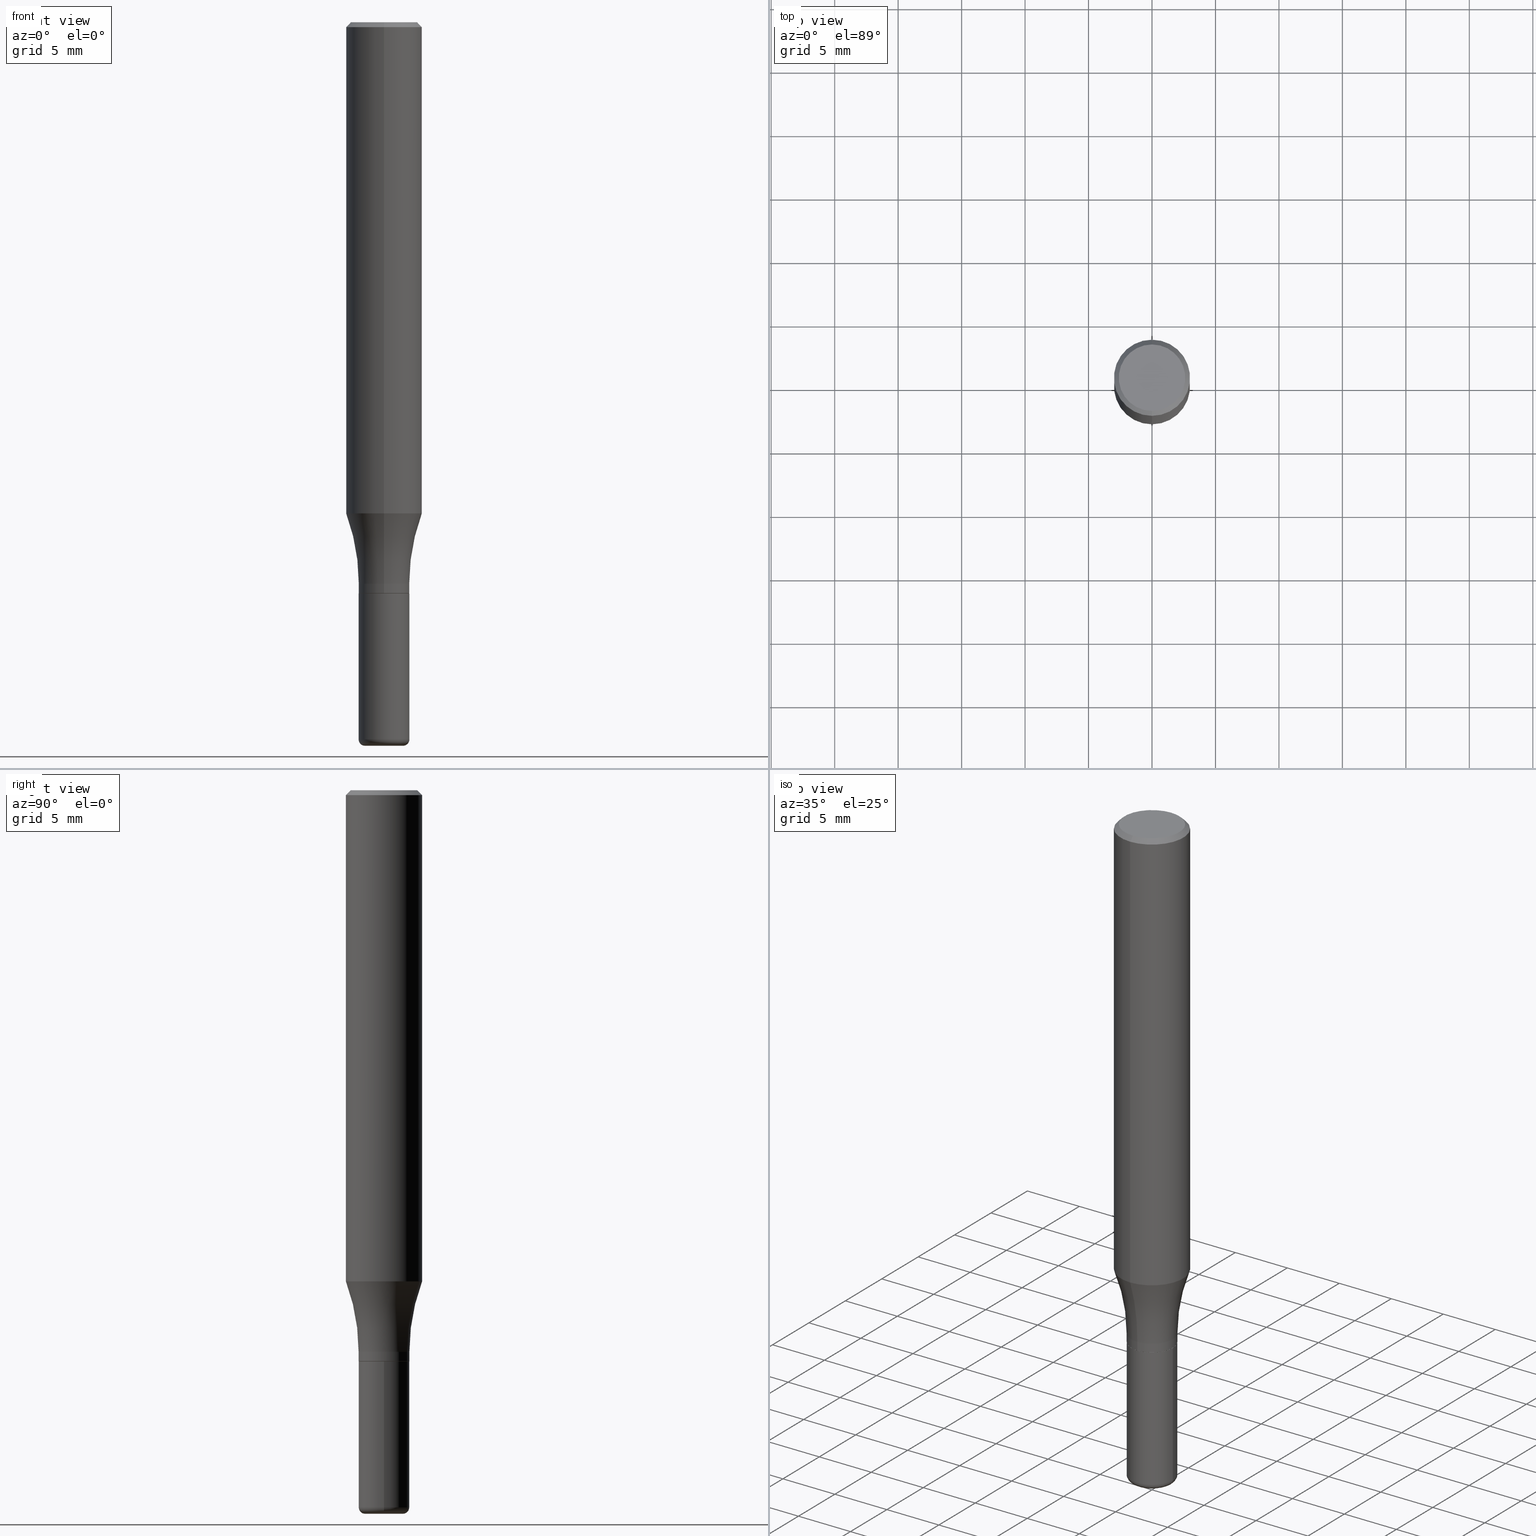
[diagram: canonical four-view strip — front | top / right | iso, engineering-drawing reading convention]
A machine part, canonical four-view strip (front | top / right | iso — engineering-drawing reading convention). The complete STEP part file that produces these views, byte-faithful:
ISO-10303-21;
HEADER;
FILE_DESCRIPTION (( 'STEP AP203' ),
    '1' );
FILE_NAME ('43471.STEP',
    '2024-02-29T19:33:10',
    ( '' ),
    ( '' ),
    'SwSTEP 2.0',
    'SolidWorks 2023',
    '' );
FILE_SCHEMA (( 'CONFIG_CONTROL_DESIGN' ));
ENDSEC;

DATA;
#1 = PLANE ( 'NONE',  #255 ) ;
#2 = DIRECTION ( 'NONE',  ( -6.982962677686265133E-15, -1.000000000000000000, 3.491179544618863180E-15 ) ) ;
#3 = ORIENTED_EDGE ( 'NONE', *, *, #267, .T. ) ;
#4 = DIRECTION ( 'NONE',  ( 6.982962677686265922E-15, 1.000000000000000000, -3.492184190823146687E-15 ) ) ;
#5 = ORIENTED_EDGE ( 'NONE', *, *, #274, .F. ) ;
#6 = CARTESIAN_POINT ( 'NONE',  ( -0.05905000000000000526, -7.311278236371589572E-15, -2.244100000000000428 ) ) ;
#7 = ORIENTED_EDGE ( 'NONE', *, *, #193, .F. ) ;
#8 = VECTOR ( 'NONE', #304, 39.37007874015748854 ) ;
#9 = PLANE ( 'NONE',  #67 ) ;
#10 = DIRECTION ( 'NONE',  ( -2.444978007270708003E-29, 3.492184190823146687E-15, 1.000000000000000000 ) ) ;
#11 = DIRECTION ( 'NONE',  ( 1.000000000000000000, 0.000000000000000000, 0.000000000000000000 ) ) ;
#12 = ADVANCED_BREP_SHAPE_REPRESENTATION ( '43471', ( #367, #372, #425 ), #356 ) ;
#13 = UNCERTAINTY_MEASURE_WITH_UNIT (LENGTH_MEASURE( 1.000000000000000082E-05 ), #403, 'distance_accuracy_value', 'NONE');
#14 = FACE_OUTER_BOUND ( 'NONE', #261, .T. ) ;
#15 = VECTOR ( 'NONE', #333, 39.37007874015748143 ) ;
#16 = VERTEX_POINT ( 'NONE', #295 ) ;
#17 = AXIS2_PLACEMENT_3D ( 'NONE', #36, #79, #227 ) ;
#18 = ADVANCED_FACE ( 'NONE', ( #129 ), #39, .F. ) ;
#19 = CARTESIAN_POINT ( 'NONE',  ( 5.595524044111222877E-16, 0.07874999999999389433, -1.771200000000000774 ) ) ;
#20 = ORIENTED_EDGE ( 'NONE', *, *, #416, .T. ) ;
#21 = VERTEX_POINT ( 'NONE', #19 ) ;
#22 = APPROVAL_DATE_TIME ( #148, #140 ) ;
#23 = CONICAL_SURFACE ( 'NONE', #332, 0.07825000000000008338, 0.7853981633978239785 ) ;
#24 = ORIENTED_EDGE ( 'NONE', *, *, #260, .F. ) ;
#25 = SECURITY_CLASSIFICATION_LEVEL ( 'unclassified' ) ;
#26 = EDGE_CURVE ( 'NONE', #21, #309, #68, .T. ) ;
#27 = ORIENTED_EDGE ( 'NONE', *, *, #154, .T. ) ;
#28 = FACE_OUTER_BOUND ( 'NONE', #219, .T. ) ;
#29 = AXIS2_PLACEMENT_3D ( 'NONE', #99, #202, #179 ) ;
#30 = EDGE_CURVE ( 'NONE', #198, #519, #190, .T. ) ;
#31 = AXIS2_PLACEMENT_3D ( 'NONE', #391, #32, #186 ) ;
#32 = DIRECTION ( 'NONE',  ( -2.444978007270708003E-29, 3.492184190823146687E-15, 1.000000000000000000 ) ) ;
#33 = CYLINDRICAL_SURFACE ( 'NONE', #299, 0.07875000000000008382 ) ;
#34 = DIRECTION ( 'NONE',  ( 1.000000000000000000, -6.982962677686271444E-15, 0.000000000000000000 ) ) ;
#35 = CARTESIAN_POINT ( 'NONE',  ( 3.724768054275150993E-29, -5.320119884490468606E-15, -1.523436220366273686 ) ) ;
#36 = CARTESIAN_POINT ( 'NONE',  ( 5.000444502911747562E-15, 0.7037499999999939915, -1.741700000000002690 ) ) ;
#37 = AXIS2_PLACEMENT_3D ( 'NONE', #520, #44, #366 ) ;
#38 = CC_DESIGN_APPROVAL ( #473, ( #139 ) ) ;
#39 = TOROIDAL_SURFACE ( 'NONE', #491, 0.7037500000000000977, 0.6250000000000000000 ) ;
#40 = DIRECTION ( 'NONE',  ( -2.445468806185136877E-29, 3.491481338843145188E-15, 1.000000000000000000 ) ) ;
#41 = DIRECTION ( 'NONE',  ( -2.444978007270708003E-29, 3.492184190823146687E-15, 1.000000000000000000 ) ) ;
#42 = ORIENTED_EDGE ( 'NONE', *, *, #286, .F. ) ;
#43 = CARTESIAN_POINT ( 'NONE',  ( 4.331767535481513258E-29, -6.187102730881369241E-15, -1.771700000000000053 ) ) ;
#44 = DIRECTION ( 'NONE',  ( -2.444978007270708003E-29, 3.492184190823146687E-15, 1.000000000000000000 ) ) ;
#45 = ORIENTED_EDGE ( 'NONE', *, *, #26, .F. ) ;
#46 = DIRECTION ( 'NONE',  ( -6.982962677686266711E-15, -1.000000000000000000, 3.492184190823146293E-15 ) ) ;
#47 = CC_DESIGN_PERSON_AND_ORGANIZATION_ASSIGNMENT ( #463, #71, ( #139 ) ) ;
#48 = DIRECTION ( 'NONE',  ( -2.444978007270708003E-29, 3.492184190823146687E-15, 1.000000000000000000 ) ) ;
#49 = DIRECTION ( 'NONE',  ( -6.982962677686266711E-15, -1.000000000000000000, 3.491481338843145583E-15 ) ) ;
#50 = VECTOR ( 'NONE', #474, 39.37007874015748143 ) ;
#51 = CYLINDRICAL_SURFACE ( 'NONE', #59, 0.1181000000000000105 ) ;
#52 = EDGE_CURVE ( 'NONE', #381, #406, #443, .T. ) ;
#53 = DIRECTION ( 'NONE',  ( 2.444978007270708003E-29, -3.492184190823146687E-15, -1.000000000000000000 ) ) ;
#54 = ORIENTED_EDGE ( 'NONE', *, *, #442, .T. ) ;
#55 = ORIENTED_EDGE ( 'NONE', *, *, #85, .F. ) ;
#56 = CARTESIAN_POINT ( 'NONE',  ( 3.724768054275150993E-29, -5.320119884490468606E-15, -1.523436220366273686 ) ) ;
#57 = CARTESIAN_POINT ( 'NONE',  ( 0.000000000000000000, 0.000000000000000000, 0.000000000000000000 ) ) ;
#58 = CIRCLE ( 'NONE', #264, 0.07875000000000016709 ) ;
#59 = AXIS2_PLACEMENT_3D ( 'NONE', #494, #159, #318 ) ;
#60 = FACE_OUTER_BOUND ( 'NONE', #221, .T. ) ;
#61 = DIRECTION ( 'NONE',  ( -2.445468806185136597E-29, 3.491481338843145583E-15, 1.000000000000000000 ) ) ;
#62 = ORIENTED_EDGE ( 'NONE', *, *, #515, .T. ) ;
#63 = ORIENTED_EDGE ( 'NONE', *, *, #26, .T. ) ;
#64 = SHAPE_DEFINITION_REPRESENTATION ( #306, #12 ) ;
#65 = CALENDAR_DATE ( 2024, 29, 2 ) ;
#66 = CC_DESIGN_PERSON_AND_ORGANIZATION_ASSIGNMENT ( #470, #506, ( #226 ) ) ;
#67 = AXIS2_PLACEMENT_3D ( 'NONE', #405, #91, #335 ) ;
#68 = CIRCLE ( 'NONE', #343, 0.07875000000000008382 ) ;
#69 = ORIENTED_EDGE ( 'NONE', *, *, #286, .T. ) ;
#70 = CARTESIAN_POINT ( 'NONE',  ( 0.07875000000000016709, -8.316359400990487656E-15, -2.224399999999999711 ) ) ;
#71 = PERSON_AND_ORGANIZATION_ROLE ( 'classification_officer' ) ;
#72 = APPLICATION_PROTOCOL_DEFINITION ( 'international standard', 'config_control_design', 1994, #502 ) ;
#73 = TOROIDAL_SURFACE ( 'NONE', #141, 0.7037500000000000977, 0.6250000000000000000 ) ;
#74 = LINE ( 'NONE', #239, #424 ) ;
#75 = DIRECTION ( 'NONE',  ( -6.982962677686265922E-15, -1.000000000000000000, 3.487819265831411744E-15 ) ) ;
#76 = DIRECTION ( 'NONE',  ( -6.982962677686265922E-15, -1.000000000000000000, 3.492184190823146687E-15 ) ) ;
#77 = DIRECTION ( 'NONE',  ( -2.445468806185136877E-29, 3.491481338843145188E-15, 1.000000000000000000 ) ) ;
#78 = CC_DESIGN_DATE_AND_TIME_ASSIGNMENT ( #185, #342, ( #139 ) ) ;
#79 = DIRECTION ( 'NONE',  ( 1.000000000000000000, -7.105427357601001070E-15, 4.926324115996358124E-29 ) ) ;
#80 = AXIS2_PLACEMENT_3D ( 'NONE', #289, #364, #4 ) ;
#81 = FACE_OUTER_BOUND ( 'NONE', #487, .T. ) ;
#82 = DIRECTION ( 'NONE',  ( -6.982962677686265922E-15, -1.000000000000000000, 3.492184190823147082E-15 ) ) ;
#83 = ORIENTED_EDGE ( 'NONE', *, *, #277, .F. ) ;
#84 = DIRECTION ( 'NONE',  ( -6.982962677686266711E-15, -1.000000000000000000, 0.000000000000000000 ) ) ;
#85 = EDGE_CURVE ( 'NONE', #496, #127, #302, .T. ) ;
#86 =( NAMED_UNIT ( * ) PLANE_ANGLE_UNIT ( ) SI_UNIT ( $, .RADIAN. ) );
#87 = CARTESIAN_POINT ( 'NONE',  ( 8.246878922347483612E-16, 0.1180999999999999411, -0.01500000000000009659 ) ) ;
#88 = ORIENTED_EDGE ( 'NONE', *, *, #388, .T. ) ;
#89 = CIRCLE ( 'NONE', #225, 0.07875000000000008382 ) ;
#90 = CARTESIAN_POINT ( 'NONE',  ( -4.914259984421667441E-15, -0.7037500000000062039, -1.741699999999997805 ) ) ;
#91 = DIRECTION ( 'NONE',  ( -2.438088387897960049E-29, 3.491481338843145188E-15, 1.000000000000000000 ) ) ;
#92 = EDGE_CURVE ( 'NONE', #462, #16, #433, .T. ) ;
#93 = ADVANCED_FACE ( 'NONE', ( #81 ), #23, .T. ) ;
#94 = DIRECTION ( 'NONE',  ( -2.444978007270708003E-29, 3.492184190823146687E-15, 1.000000000000000000 ) ) ;
#95 = CYLINDRICAL_SURFACE ( 'NONE', #390, 0.07875000000000008382 ) ;
#96 = ORIENTED_EDGE ( 'NONE', *, *, #274, .T. ) ;
#97 = ADVANCED_FACE ( 'NONE', ( #436 ), #1, .F. ) ;
#98 = ORIENTED_EDGE ( 'NONE', *, *, #85, .T. ) ;
#99 = CARTESIAN_POINT ( 'NONE',  ( 5.439700812478218014E-29, -7.766451090122692732E-15, -2.224399999999999711 ) ) ;
#100 = CARTESIAN_POINT ( 'NONE',  ( 4.332637083918206427E-29, -6.185857488028401081E-15, -1.771700000000000053 ) ) ;
#101 = VECTOR ( 'NONE', #501, 39.37007874015748854 ) ;
#102 = ORIENTED_EDGE ( 'NONE', *, *, #416, .F. ) ;
#103 = EDGE_CURVE ( 'NONE', #312, #462, #210, .T. ) ;
#104 = CALENDAR_DATE ( 2024, 29, 2 ) ;
#105 = ORIENTED_EDGE ( 'NONE', *, *, #144, .T. ) ;
#106 = CIRCLE ( 'NONE', #17, 0.6249999999999998890 ) ;
#107 = ORIENTED_EDGE ( 'NONE', *, *, #305, .F. ) ;
#108 = DATE_TIME_ROLE ( 'creation_date' ) ;
#109 = EDGE_CURVE ( 'NONE', #309, #198, #209, .T. ) ;
#110 = APPROVAL_ROLE ( '' ) ;
#111 = VECTOR ( 'NONE', #243, 39.37007874015748143 ) ;
#112 = DIRECTION ( 'NONE',  ( -6.982962677686265133E-15, -1.000000000000000000, 3.469013325287949743E-15 ) ) ;
#113 = ADVANCED_FACE ( 'NONE', ( #14 ), #95, .T. ) ;
#114 = CARTESIAN_POINT ( 'NONE',  ( 5.439700812478218014E-29, -7.766451090122692732E-15, -2.224399999999999711 ) ) ;
#115 = CARTESIAN_POINT ( 'NONE',  ( 4.330545046477879142E-29, -6.185356638785960229E-15, -1.771200000000000552 ) ) ;
#116 = DIRECTION ( 'NONE',  ( -6.982962677686265922E-15, -1.000000000000000000, 3.487819265831411744E-15 ) ) ;
#117 = TOROIDAL_SURFACE ( 'NONE', #29, 0.05904999999999999832, 0.01970000000000016877 ) ;
#118 = CARTESIAN_POINT ( 'NONE',  ( 0.000000000000000000, 0.000000000000000000, 0.000000000000000000 ) ) ;
#119 = CIRCLE ( 'NONE', #131, 0.07875000000000016709 ) ;
#120 = ADVANCED_FACE ( 'NONE', ( #298 ), #73, .F. ) ;
#121 = ORIENTED_EDGE ( 'NONE', *, *, #236, .F. ) ;
#122 = VERTEX_POINT ( 'NONE', #283 ) ;
#123 = EDGE_CURVE ( 'NONE', #174, #309, #458, .T. ) ;
#124 = FACE_OUTER_BOUND ( 'NONE', #256, .T. ) ;
#125 = ORIENTED_EDGE ( 'NONE', *, *, #103, .T. ) ;
#126 = ORIENTED_EDGE ( 'NONE', *, *, #236, .T. ) ;
#127 = VERTEX_POINT ( 'NONE', #137 ) ;
#128 = ORIENTED_EDGE ( 'NONE', *, *, #388, .F. ) ;
#129 = FACE_OUTER_BOUND ( 'NONE', #511, .T. ) ;
#130 = CARTESIAN_POINT ( 'NONE',  ( 5.499083108678366344E-16, 0.07874999999999381106, -1.771700000000000497 ) ) ;
#131 = AXIS2_PLACEMENT_3D ( 'NONE', #114, #363, #280 ) ;
#132 = EDGE_LOOP ( 'NONE', ( #128, #98, #135, #164 ) ) ;
#133 = ORIENTED_EDGE ( 'NONE', *, *, #365, .T. ) ;
#134 = CARTESIAN_POINT ( 'NONE',  ( 0.000000000000000000, 0.000000000000000000, 0.000000000000000000 ) ) ;
#135 = ORIENTED_EDGE ( 'NONE', *, *, #348, .T. ) ;
#136 = PLANE ( 'NONE',  #444 ) ;
#137 = CARTESIAN_POINT ( 'NONE',  ( -8.246878922347104959E-16, -0.1181000000000053535, -1.523436220366273020 ) ) ;
#138 = DATE_AND_TIME ( #65, #166 ) ;
#139 = SECURITY_CLASSIFICATION ( '', '', #25 ) ;
#140 = APPROVAL ( #259, 'UNSPECIFIED' ) ;
#141 = AXIS2_PLACEMENT_3D ( 'NONE', #250, #413, #177 ) ;
#142 = ORIENTED_EDGE ( 'NONE', *, *, #442, .F. ) ;
#143 = CARTESIAN_POINT ( 'NONE',  ( 5.559996907323221780E-16, 0.07824999999999389388, -1.771700000000000497 ) ) ;
#144 = EDGE_CURVE ( 'NONE', #273, #16, #279, .T. ) ;
#145 = ORIENTED_EDGE ( 'NONE', *, *, #231, .F. ) ;
#146 = FACE_OUTER_BOUND ( 'NONE', #248, .T. ) ;
#147 = EDGE_LOOP ( 'NONE', ( #55, #493, #336, #145 ) ) ;
#148 = DATE_AND_TIME ( #465, #423 ) ;
#149 = AXIS2_PLACEMENT_3D ( 'NONE', #410, #48, #455 ) ;
#150 = PLANE ( 'NONE',  #80 ) ;
#151 = AXIS2_PLACEMENT_3D ( 'NONE', #276, #153, #116 ) ;
#152 = CONICAL_SURFACE ( 'NONE', #350, 0.1180999999999999966, 0.7853981633974495002 ) ;
#153 = DIRECTION ( 'NONE',  ( -2.444978007270708003E-29, 3.492184190823146687E-15, 1.000000000000000000 ) ) ;
#154 = EDGE_CURVE ( 'NONE', #381, #122, #447, .T. ) ;
#155 = CARTESIAN_POINT ( 'NONE',  ( -6.681079993535838680E-45, 9.542646952925085965E-31, 2.732572634055644223E-16 ) ) ;
#156 = CIRCLE ( 'NONE', #313, 0.1180999999999999966 ) ;
#157 = DIRECTION ( 'NONE',  ( 1.000000000000000000, -6.982962677686267499E-15, 4.876176775795935232E-29 ) ) ;
#158 = CARTESIAN_POINT ( 'NONE',  ( -8.102248135368174406E-16, -0.1181000000000000522, -0.01499999999999927260 ) ) ;
#159 = DIRECTION ( 'NONE',  ( -2.444978007270708003E-29, 3.492184190823146687E-15, 1.000000000000000000 ) ) ;
#160 = DIRECTION ( 'NONE',  ( 7.105427357601001859E-15, 1.000000000000000000, -3.491481338843145583E-15 ) ) ;
#161 = CARTESIAN_POINT ( 'NONE',  ( 4.332637083918206427E-29, -6.185857488028401081E-15, -1.771700000000000053 ) ) ;
#162 = ORIENTED_EDGE ( 'NONE', *, *, #515, .F. ) ;
#163 = EDGE_CURVE ( 'NONE', #181, #191, #495, .T. ) ;
#164 = ORIENTED_EDGE ( 'NONE', *, *, #365, .F. ) ;
#165 = ADVANCED_FACE ( 'NONE', ( #146 ), #220, .T. ) ;
#166 = LOCAL_TIME ( 14, 33, 10.00000000000000000, #301 ) ;
#167 = CARTESIAN_POINT ( 'NONE',  ( -7.587710785535310407E-16, -0.1031000000000000111, 6.333014534794309554E-16 ) ) ;
#168 = ORIENTED_EDGE ( 'NONE', *, *, #267, .F. ) ;
#169 = ORIENTED_EDGE ( 'NONE', *, *, #92, .T. ) ;
#170 = DIRECTION ( 'NONE',  ( -1.000000000000000000, 6.982962677686265922E-15, -4.876176775795935793E-29 ) ) ;
#171 = CC_DESIGN_DATE_AND_TIME_ASSIGNMENT ( #383, #108, ( #226 ) ) ;
#172 = DIRECTION ( 'NONE',  ( 6.982962677686265922E-15, 1.000000000000000000, -3.487819265831411744E-15 ) ) ;
#173 = AXIS2_PLACEMENT_3D ( 'NONE', #404, #49, #464 ) ;
#174 = VERTEX_POINT ( 'NONE', #426 ) ;
#175 = CARTESIAN_POINT ( 'NONE',  ( 4.259273019732652912E-29, -6.081113047863106923E-15, -1.741700000000000248 ) ) ;
#176 = FACE_OUTER_BOUND ( 'NONE', #371, .T. ) ;
#177 = DIRECTION ( 'NONE',  ( -6.982962677686266711E-15, -1.000000000000000000, 3.492184190823146293E-15 ) ) ;
#178 = ORIENTED_EDGE ( 'NONE', *, *, #109, .T. ) ;
#179 = DIRECTION ( 'NONE',  ( 1.000000000000000000, -6.982962677686271444E-15, 4.883557194083114583E-29 ) ) ;
#180 = ADVANCED_FACE ( 'NONE', ( #28 ), #351, .T. ) ;
#181 = VERTEX_POINT ( 'NONE', #189 ) ;
#182 = PERSON_AND_ORGANIZATION_ROLE ( 'creator' ) ;
#183 = LINE ( 'NONE', #143, #8 ) ;
#184 = AXIS2_PLACEMENT_3D ( 'NONE', #360, #160, #319 ) ;
#185 = DATE_AND_TIME ( #421, #460 ) ;
#186 = DIRECTION ( 'NONE',  ( -6.982962677686265133E-15, -1.000000000000000000, 3.491179544618863180E-15 ) ) ;
#187 = ORIENTED_EDGE ( 'NONE', *, *, #123, .F. ) ;
#188 = APPROVAL_STATUS ( 'not_yet_approved' ) ;
#189 = CARTESIAN_POINT ( 'NONE',  ( 0.05905000000000000526, -8.247577218615278049E-15, -2.244100000000000428 ) ) ;
#190 = CIRCLE ( 'NONE', #292, 0.07875000000000008382 ) ;
#191 = VERTEX_POINT ( 'NONE', #70 ) ;
#192 = CARTESIAN_POINT ( 'NONE',  ( 0.000000000000000000, 0.000000000000000000, 0.000000000000000000 ) ) ;
#193 = EDGE_CURVE ( 'NONE', #252, #21, #183, .T. ) ;
#194 = FACE_OUTER_BOUND ( 'NONE', #258, .T. ) ;
#195 = CIRCLE ( 'NONE', #415, 0.07875000000000000056 ) ;
#196 = CARTESIAN_POINT ( 'NONE',  ( 7.723156721521011834E-16, 0.1031000000000000111, -8.678692666830198749E-17 ) ) ;
#197 = LINE ( 'NONE', #395, #50 ) ;
#198 = VERTEX_POINT ( 'NONE', #466 ) ;
#199 = CARTESIAN_POINT ( 'NONE',  ( 4.331767535481513258E-29, -6.187102730881369241E-15, -1.771700000000000053 ) ) ;
#200 = DIRECTION ( 'NONE',  ( -2.444978007270708003E-29, 3.492184190823146687E-15, 1.000000000000000000 ) ) ;
#201 = DIRECTION ( 'NONE',  ( -2.444978007270708003E-29, 3.492184190823146687E-15, 1.000000000000000000 ) ) ;
#202 = DIRECTION ( 'NONE',  ( -2.445468806185136597E-29, 3.491481338843145583E-15, 1.000000000000000000 ) ) ;
#203 = ORIENTED_EDGE ( 'NONE', *, *, #30, .F. ) ;
#204 = CARTESIAN_POINT ( 'NONE',  ( 0.000000000000000000, 0.000000000000000000, 0.000000000000000000 ) ) ;
#205 = DIRECTION ( 'NONE',  ( 2.444978007270708003E-29, -3.492184190823146687E-15, -1.000000000000000000 ) ) ;
#206 = EDGE_LOOP ( 'NONE', ( #107, #121 ) ) ;
#207 = ORIENTED_EDGE ( 'NONE', *, *, #52, .F. ) ;
#208 = CIRCLE ( 'NONE', #510, 0.07825000000000008338 ) ;
#209 = LINE ( 'NONE', #456, #461 ) ;
#210 = CIRCLE ( 'NONE', #184, 0.01970000000000016877 ) ;
#211 = ORIENTED_EDGE ( 'NONE', *, *, #478, .F. ) ;
#212 = CYLINDRICAL_SURFACE ( 'NONE', #218, 0.07875000000000008382 ) ;
#213 = DIRECTION ( 'NONE',  ( 1.000000000000000000, -6.982962677686261977E-15, 0.000000000000000000 ) ) ;
#214 = VERTEX_POINT ( 'NONE', #347 ) ;
#215 = ORIENTED_EDGE ( 'NONE', *, *, #231, .T. ) ;
#216 = PERSON_AND_ORGANIZATION ( #294, #471 ) ;
#217 = PERSON_AND_ORGANIZATION_ROLE ( 'design_supplier' ) ;
#218 = AXIS2_PLACEMENT_3D ( 'NONE', #134, #10, #497 ) ;
#219 = EDGE_LOOP ( 'NONE', ( #7, #62, #345, #45 ) ) ;
#220 = TOROIDAL_SURFACE ( 'NONE', #475, 0.05904999999999999832, 0.01970000000000016877 ) ;
#221 = EDGE_LOOP ( 'NONE', ( #54, #411, #203, #512 ) ) ;
#222 = PERSON_AND_ORGANIZATION ( #294, #471 ) ;
#223 = PERSON_AND_ORGANIZATION ( #294, #471 ) ;
#224 = CIRCLE ( 'NONE', #149, 0.07875000000000008382 ) ;
#225 = AXIS2_PLACEMENT_3D ( 'NONE', #516, #479, #112 ) ;
#226 = PRODUCT_DEFINITION ( 'UNKNOWN', '', #321, #331 ) ;
#227 = DIRECTION ( 'NONE',  ( 7.105427357601001859E-15, 1.000000000000000000, 0.000000000000000000 ) ) ;
#228 = ADVANCED_FACE ( 'NONE', ( #509 ), #150, .F. ) ;
#229 = DIRECTION ( 'NONE',  ( -2.445468806185136597E-29, 3.491481338843145583E-15, 1.000000000000000000 ) ) ;
#230 = CARTESIAN_POINT ( 'NONE',  ( 3.667467010905984653E-31, -5.238276286234609492E-17, -0.01499999999999968373 ) ) ;
#231 = EDGE_CURVE ( 'NONE', #127, #198, #269, .T. ) ;
#232 = AXIS2_PLACEMENT_3D ( 'NONE', #56, #253, #450 ) ;
#233 = ORIENTED_EDGE ( 'NONE', *, *, #268, .F. ) ;
#234 = CIRCLE ( 'NONE', #262, 0.1031000000000000111 ) ;
#235 = CARTESIAN_POINT ( 'NONE',  ( 4.258418195263392864E-29, -6.082337205156674734E-15, -1.741700000000000248 ) ) ;
#236 = EDGE_CURVE ( 'NONE', #312, #181, #323, .T. ) ;
#237 = LOCAL_TIME ( 14, 33, 10.00000000000000000, #419 ) ;
#238 = CARTESIAN_POINT ( 'NONE',  ( 0.07875000000000000056, -6.735765798896194427E-15, -1.771700000000000053 ) ) ;
#239 = CARTESIAN_POINT ( 'NONE',  ( 0.07875000000000008382, -5.499083108677941345E-16, 3.839989210939303220E-30 ) ) ;
#240 = ORIENTED_EDGE ( 'NONE', *, *, #163, .T. ) ;
#241 = ADVANCED_FACE ( 'NONE', ( #401 ), #51, .T. ) ;
#242 = CARTESIAN_POINT ( 'NONE',  ( 5.595524044110793934E-16, 0.07875000000000008382, -2.750095050273230812E-16 ) ) ;
#243 = DIRECTION ( 'NONE',  ( 4.937700262164553564E-15, 0.7071067811865459074, -0.7071067811865491270 ) ) ;
#244 = ADVANCED_FACE ( 'NONE', ( #284 ), #9, .F. ) ;
#245 = VECTOR ( 'NONE', #40, 39.37007874015748143 ) ;
#246 = DIRECTION ( 'NONE',  ( 1.000000000000000000, -6.982962677686267499E-15, 4.876176775795935232E-29 ) ) ;
#247 = PERSON_AND_ORGANIZATION ( #294, #471 ) ;
#248 = EDGE_LOOP ( 'NONE', ( #418, #126, #240, #233 ) ) ;
#249 = DIRECTION ( 'NONE',  ( -6.982962677686265133E-15, -1.000000000000000000, 3.491179544618863180E-15 ) ) ;
#250 = CARTESIAN_POINT ( 'NONE',  ( 4.259273019732652912E-29, -6.081113047863106923E-15, -1.741700000000000248 ) ) ;
#251 = EDGE_LOOP ( 'NONE', ( #379, #288 ) ) ;
#252 = VERTEX_POINT ( 'NONE', #498 ) ;
#253 = DIRECTION ( 'NONE',  ( -2.444978007270708003E-29, 3.492184190823146687E-15, 1.000000000000000000 ) ) ;
#254 = DIRECTION ( 'NONE',  ( -2.445468806185136597E-29, 3.491481338843145583E-15, 1.000000000000000000 ) ) ;
#255 = AXIS2_PLACEMENT_3D ( 'NONE', #199, #282, #76 ) ;
#256 = EDGE_LOOP ( 'NONE', ( #339, #63, #178, #83 ) ) ;
#257 = PERSON_AND_ORGANIZATION ( #294, #471 ) ;
#258 = EDGE_LOOP ( 'NONE', ( #438, #414, #3, #420 ) ) ;
#259 = APPROVAL_STATUS ( 'not_yet_approved' ) ;
#260 = EDGE_CURVE ( 'NONE', #174, #252, #505, .T. ) ;
#261 = EDGE_LOOP ( 'NONE', ( #507, #454, #96, #42 ) ) ;
#262 = AXIS2_PLACEMENT_3D ( 'NONE', #320, #361, #517 ) ;
#263 = DIRECTION ( 'NONE',  ( -2.445468806185136597E-29, 3.491481338843145583E-15, 1.000000000000000000 ) ) ;
#264 = AXIS2_PLACEMENT_3D ( 'NONE', #393, #317, #34 ) ;
#265 = ORIENTED_EDGE ( 'NONE', *, *, #352, .F. ) ;
#266 = APPROVAL_ROLE ( '' ) ;
#267 = EDGE_CURVE ( 'NONE', #214, #122, #357, .T. ) ;
#268 = EDGE_CURVE ( 'NONE', #462, #191, #119, .T. ) ;
#269 = CIRCLE ( 'NONE', #483, 0.6250000000000001110 ) ;
#270 = DIRECTION ( 'NONE',  ( -2.444978007270708003E-29, 3.492184190823146687E-15, 1.000000000000000000 ) ) ;
#271 = DIRECTION ( 'NONE',  ( 1.000000000000000000, -6.982962677686272233E-15, 0.000000000000000000 ) ) ;
#272 = LINE ( 'NONE', #158, #514 ) ;
#273 = VERTEX_POINT ( 'NONE', #238 ) ;
#274 = EDGE_CURVE ( 'NONE', #191, #273, #74, .T. ) ;
#275 = DIRECTION ( 'NONE',  ( -2.444978007270708003E-29, 3.492184190823146687E-15, 1.000000000000000000 ) ) ;
#276 = CARTESIAN_POINT ( 'NONE',  ( 3.667467010905984653E-31, -5.238276286234609492E-17, -0.01499999999999968373 ) ) ;
#277 = EDGE_CURVE ( 'NONE', #519, #198, #89, .T. ) ;
#278 = CONICAL_SURFACE ( 'NONE', #311, 0.1180999999999999966, 0.7853981633974495002 ) ;
#279 = CIRCLE ( 'NONE', #369, 0.07875000000000000056 ) ;
#280 = DIRECTION ( 'NONE',  ( 1.000000000000000000, -6.982962677686271444E-15, 0.000000000000000000 ) ) ;
#281 = EDGE_LOOP ( 'NONE', ( #328, #88, #168, #382 ) ) ;
#282 = DIRECTION ( 'NONE',  ( -2.444978007270707723E-29, 3.492184190823146687E-15, 1.000000000000000000 ) ) ;
#283 = CARTESIAN_POINT ( 'NONE',  ( 8.246878922347483612E-16, 0.1180999999999999411, -0.01500000000000009659 ) ) ;
#284 = FACE_OUTER_BOUND ( 'NONE', #206, .T. ) ;
#285 = ORIENTED_EDGE ( 'NONE', *, *, #193, .T. ) ;
#286 = EDGE_CURVE ( 'NONE', #16, #273, #195, .T. ) ;
#287 = APPLICATION_PROTOCOL_DEFINITION ( 'international standard', 'config_control_design', 1994, #326 ) ;
#288 = ORIENTED_EDGE ( 'NONE', *, *, #296, .T. ) ;
#289 = CARTESIAN_POINT ( 'NONE',  ( 7.199434520694541042E-16, 0.1031000000000000111, -2.234155583710842233E-16 ) ) ;
#290 = CC_DESIGN_SECURITY_CLASSIFICATION ( #139, ( #321 ) ) ;
#291 = ORIENTED_EDGE ( 'NONE', *, *, #260, .T. ) ;
#292 = AXIS2_PLACEMENT_3D ( 'NONE', #235, #270, #480 ) ;
#293 = DIRECTION ( 'NONE',  ( 6.982962677686265922E-15, 1.000000000000000000, -3.487819265831411744E-15 ) ) ;
#294 = PERSON ( 'UNSPECIFIED', 'UNSPECIFIED', 'UNSPECIFIED', ('UNSPECIFIED'), ('UNSPECIFIED'), ('UNSPECIFIED') ) ;
#295 = CARTESIAN_POINT ( 'NONE',  ( -0.07875000000000000056, -6.416601884664467316E-15, -1.771700000000000053 ) ) ;
#296 = EDGE_CURVE ( 'NONE', #406, #381, #234, .T. ) ;
#297 =( NAMED_UNIT ( * ) SI_UNIT ( $, .STERADIAN. ) SOLID_ANGLE_UNIT ( ) );
#298 = FACE_OUTER_BOUND ( 'NONE', #147, .T. ) ;
#299 = AXIS2_PLACEMENT_3D ( 'NONE', #192, #229, #157 ) ;
#300 = EDGE_LOOP ( 'NONE', ( #105, #69 ) ) ;
#301 = COORDINATED_UNIVERSAL_TIME_OFFSET ( 5, 0, .BEHIND. ) ;
#302 = CIRCLE ( 'NONE', #452, 0.1181000000000000383 ) ;
#303 = ORIENTED_EDGE ( 'NONE', *, *, #144, .F. ) ;
#304 = DIRECTION ( 'NONE',  ( 5.024295867789948556E-15, 0.7071067811868154696, 0.7071067811862793429 ) ) ;
#305 = EDGE_CURVE ( 'NONE', #181, #312, #386, .T. ) ;
#306 = PRODUCT_DEFINITION_SHAPE ( 'NONE', 'NONE',  #226 ) ;
#307 = ORIENTED_EDGE ( 'NONE', *, *, #30, .T. ) ;
#308 = APPROVAL_DATE_TIME ( #138, #459 ) ;
#309 = VERTEX_POINT ( 'NONE', #355 ) ;
#310 = PERSON_AND_ORGANIZATION_ROLE ( 'design_owner' ) ;
#311 = AXIS2_PLACEMENT_3D ( 'NONE', #375, #205, #293 ) ;
#312 = VERTEX_POINT ( 'NONE', #6 ) ;
#313 = AXIS2_PLACEMENT_3D ( 'NONE', #481, #446, #75 ) ;
#314 = CARTESIAN_POINT ( 'NONE',  ( 5.487876547960065873E-29, -7.835233272497903917E-15, -2.244100000000000428 ) ) ;
#315 = DIRECTION ( 'NONE',  ( -6.982962677686265133E-15, -1.000000000000000000, 3.491179544618863180E-15 ) ) ;
#316 = CARTESIAN_POINT ( 'NONE',  ( 4.331767535481513258E-29, -6.187102730881369241E-15, -1.771700000000000053 ) ) ;
#317 = DIRECTION ( 'NONE',  ( -2.445468806185136597E-29, 3.491481338843145583E-15, 1.000000000000000000 ) ) ;
#318 = DIRECTION ( 'NONE',  ( -6.982962677686265922E-15, -1.000000000000000000, 3.492184190823147082E-15 ) ) ;
#319 = DIRECTION ( 'NONE',  ( -1.000000000000000000, 7.105427357601014480E-15, 0.000000000000000000 ) ) ;
#320 = CARTESIAN_POINT ( 'NONE',  ( -6.681079993535838680E-45, 9.542646952925085965E-31, 2.732572634055644223E-16 ) ) ;
#321 = PRODUCT_DEFINITION_FORMATION_WITH_SPECIFIED_SOURCE ( 'ANY', '', #385, .NOT_KNOWN. ) ;
#322 = DIRECTION ( 'NONE',  ( -1.000000000000000000, 6.982962677686265922E-15, -4.883557194083112340E-29 ) ) ;
#323 = CIRCLE ( 'NONE', #359, 0.05905000000000000526 ) ;
#324 = DIRECTION ( 'NONE',  ( -2.444978007270708003E-29, 3.492184190823146687E-15, 1.000000000000000000 ) ) ;
#325 = CC_DESIGN_PERSON_AND_ORGANIZATION_ASSIGNMENT ( #247, #310, ( #385 ) ) ;
#326 = APPLICATION_CONTEXT ( 'configuration controlled 3d designs of mechanical parts and assemblies' ) ;
#327 = PRODUCT_RELATED_PRODUCT_CATEGORY ( 'detail', '', ( #385 ) ) ;
#328 = ORIENTED_EDGE ( 'NONE', *, *, #478, .T. ) ;
#329 = MECHANICAL_CONTEXT ( 'NONE', #326, 'mechanical' ) ;
#330 = DIRECTION ( 'NONE',  ( 1.000000000000000000, -6.982962677686272233E-15, 0.000000000000000000 ) ) ;
#331 = DESIGN_CONTEXT ( 'detailed design', #502, 'design' ) ;
#332 = AXIS2_PLACEMENT_3D ( 'NONE', #43, #362, #315 ) ;
#333 = DIRECTION ( 'NONE',  ( -2.444978007270708003E-29, 3.492184190823146687E-15, 1.000000000000000000 ) ) ;
#334 = APPROVAL_PERSON_ORGANIZATION ( #222, #473, #346 ) ;
#335 = DIRECTION ( 'NONE',  ( 1.000000000000000000, -6.982962677686265922E-15, 4.876176775795935793E-29 ) ) ;
#336 = ORIENTED_EDGE ( 'NONE', *, *, #277, .T. ) ;
#337 = DIRECTION ( 'NONE',  ( -2.444978007270708003E-29, 3.492184190823146687E-15, 1.000000000000000000 ) ) ;
#338 = CARTESIAN_POINT ( 'NONE',  ( -5.464168295289075428E-16, -0.07825000000000625899, -1.771699999999999831 ) ) ;
#339 = ORIENTED_EDGE ( 'NONE', *, *, #486, .F. ) ;
#340 = DIRECTION ( 'NONE',  ( 2.438088387897960049E-29, -3.491481338843145188E-15, -1.000000000000000000 ) ) ;
#341 = CLOSED_SHELL ( 'NONE', ( #449, #409, #453, #113, #165, #244 ) ) ;
#342 = DATE_TIME_ROLE ( 'classification_date' ) ;
#343 = AXIS2_PLACEMENT_3D ( 'NONE', #115, #275, #439 ) ;
#344 = ADVANCED_FACE ( 'NONE', ( #124 ), #477, .T. ) ;
#345 = ORIENTED_EDGE ( 'NONE', *, *, #123, .T. ) ;
#346 = APPROVAL_ROLE ( '' ) ;
#347 = CARTESIAN_POINT ( 'NONE',  ( -8.102248135368174406E-16, -0.1181000000000000522, -0.01499999999999927260 ) ) ;
#348 = EDGE_CURVE ( 'NONE', #127, #214, #197, .T. ) ;
#349 = DATE_AND_TIME ( #104, #429 ) ;
#350 = AXIS2_PLACEMENT_3D ( 'NONE', #230, #53, #172 ) ;
#351 = CONICAL_SURFACE ( 'NONE', #31, 0.07825000000000008338, 0.7853981633978239785 ) ;
#352 = EDGE_CURVE ( 'NONE', #496, #519, #106, .T. ) ;
#353 = COORDINATED_UNIVERSAL_TIME_OFFSET ( 5, 0, .BEHIND. ) ;
#354 = DIRECTION ( 'NONE',  ( 1.000000000000000000, -6.982962677686261977E-15, 0.000000000000000000 ) ) ;
#355 = CARTESIAN_POINT ( 'NONE',  ( -5.499083108677506486E-16, -0.07875000000000625944, -1.771200000000000330 ) ) ;
#356 =( GEOMETRIC_REPRESENTATION_CONTEXT ( 3 ) GLOBAL_UNCERTAINTY_ASSIGNED_CONTEXT ( ( #13 ) ) GLOBAL_UNIT_ASSIGNED_CONTEXT ( ( #403, #86, #297 ) ) REPRESENTATION_CONTEXT ( 'NONE', 'WORKASPACE' ) );
#357 = CIRCLE ( 'NONE', #151, 0.1180999999999999966 ) ;
#358 = EDGE_CURVE ( 'NONE', #406, #214, #272, .T. ) ;
#359 = AXIS2_PLACEMENT_3D ( 'NONE', #451, #374, #330 ) ;
#360 = CARTESIAN_POINT ( 'NONE',  ( -0.05904999999999999832, -7.346875604656353240E-15, -2.224399999999999711 ) ) ;
#361 = DIRECTION ( 'NONE',  ( -2.444978007270708003E-29, 3.492184190823146687E-15, 1.000000000000000000 ) ) ;
#362 = DIRECTION ( 'NONE',  ( -2.444978007270708003E-29, 3.492184190823146687E-15, 1.000000000000000000 ) ) ;
#363 = DIRECTION ( 'NONE',  ( -2.445468806185136597E-29, 3.491481338843145583E-15, 1.000000000000000000 ) ) ;
#364 = DIRECTION ( 'NONE',  ( 2.444978007270707723E-29, -3.492184190823146687E-15, -1.000000000000000000 ) ) ;
#365 = EDGE_CURVE ( 'NONE', #122, #214, #156, .T. ) ;
#366 = DIRECTION ( 'NONE',  ( -6.982962677686265133E-15, -1.000000000000000000, 3.492184190823146687E-15 ) ) ;
#367 = MANIFOLD_SOLID_BREP ( 'Body-Move/Copy2[1]', #341 ) ;
#368 = CC_DESIGN_APPROVAL ( #459, ( #321 ) ) ;
#369 = AXIS2_PLACEMENT_3D ( 'NONE', #100, #61, #213 ) ;
#370 = CARTESIAN_POINT ( 'NONE',  ( -0.07875000000000016709, -6.416601884664464950E-15, -2.224399999999999711 ) ) ;
#371 = EDGE_LOOP ( 'NONE', ( #448, #207, #27, #133 ) ) ;
#372 = MANIFOLD_SOLID_BREP ( 'Body-Move/Copy2[2]', #435 ) ;
#373 = DIRECTION ( 'NONE',  ( 0.000000000000000000, 0.000000000000000000, 1.000000000000000000 ) ) ;
#374 = DIRECTION ( 'NONE',  ( -2.445468806185136597E-29, 3.491481338843145583E-15, 1.000000000000000000 ) ) ;
#375 = CARTESIAN_POINT ( 'NONE',  ( 3.667467010905984653E-31, -5.238276286234609492E-17, -0.01499999999999968373 ) ) ;
#376 = VECTOR ( 'NONE', #200, 39.37007874015748143 ) ;
#377 = LENGTH_MEASURE_WITH_UNIT ( LENGTH_MEASURE( 0.02539999999999999897 ), #504 );
#378 = DIRECTION ( 'NONE',  ( -2.444978007270708003E-29, 3.492184190823146687E-15, 1.000000000000000000 ) ) ;
#379 = ORIENTED_EDGE ( 'NONE', *, *, #52, .T. ) ;
#380 = CARTESIAN_POINT ( 'NONE',  ( 4.331767535481513258E-29, -6.187102730881369241E-15, -1.771700000000000053 ) ) ;
#381 = VERTEX_POINT ( 'NONE', #196 ) ;
#382 = ORIENTED_EDGE ( 'NONE', *, *, #348, .F. ) ;
#383 = DATE_AND_TIME ( #427, #237 ) ;
#384 = CC_DESIGN_PERSON_AND_ORGANIZATION_ASSIGNMENT ( #428, #217, ( #321 ) ) ;
#385 = PRODUCT ( '43471', '43471', '', ( #329 ) ) ;
#386 = CIRCLE ( 'NONE', #431, 0.05905000000000000526 ) ;
#387 = COORDINATED_UNIVERSAL_TIME_OFFSET ( 5, 0, .BEHIND. ) ;
#388 = EDGE_CURVE ( 'NONE', #496, #122, #485, .T. ) ;
#389 = APPROVAL_DATE_TIME ( #349, #473 ) ;
#390 = AXIS2_PLACEMENT_3D ( 'NONE', #57, #254, #246 ) ;
#391 = CARTESIAN_POINT ( 'NONE',  ( 4.331767535481513258E-29, -6.187102730881369241E-15, -1.771700000000000053 ) ) ;
#392 = CYLINDRICAL_SURFACE ( 'NONE', #396, 0.1181000000000000105 ) ;
#393 = CARTESIAN_POINT ( 'NONE',  ( 5.439700812478218014E-29, -7.766451090122692732E-15, -2.224399999999999711 ) ) ;
#394 = CC_DESIGN_PERSON_AND_ORGANIZATION_ASSIGNMENT ( #223, #182, ( #321 ) ) ;
#395 = CARTESIAN_POINT ( 'NONE',  ( -8.246878922347480654E-16, -0.1181000000000000105, 4.124269529362136880E-16 ) ) ;
#396 = AXIS2_PLACEMENT_3D ( 'NONE', #118, #41, #82 ) ;
#397 = DIRECTION ( 'NONE',  ( -6.982962677686265922E-15, -1.000000000000000000, 3.492184190823147082E-15 ) ) ;
#398 = FACE_OUTER_BOUND ( 'NONE', #281, .T. ) ;
#399 = DIRECTION ( 'NONE',  ( -2.445468806185136597E-29, 3.491481338843145583E-15, 1.000000000000000000 ) ) ;
#400 = ADVANCED_FACE ( 'NONE', ( #398 ), #392, .T. ) ;
#401 = FACE_OUTER_BOUND ( 'NONE', #132, .T. ) ;
#402 = EDGE_LOOP ( 'NONE', ( #24, #162 ) ) ;
#403 =( CONVERSION_BASED_UNIT ( 'INCH', #377 ) LENGTH_UNIT ( ) NAMED_UNIT ( #422 ) );
#404 = CARTESIAN_POINT ( 'NONE',  ( 0.05904999999999999832, -8.178795036240066864E-15, -2.224399999999999711 ) ) ;
#405 = CARTESIAN_POINT ( 'NONE',  ( 5.551509471537904462E-29, -7.744107304173347944E-15, -2.244100000000000428 ) ) ;
#406 = VERTEX_POINT ( 'NONE', #167 ) ;
#407 = AXIS2_PLACEMENT_3D ( 'NONE', #155, #488, #397 ) ;
#408 = LINE ( 'NONE', #242, #15 ) ;
#409 = ADVANCED_FACE ( 'NONE', ( #430 ), #33, .T. ) ;
#410 = CARTESIAN_POINT ( 'NONE',  ( 4.330545046477879142E-29, -6.185356638785960229E-15, -1.771200000000000552 ) ) ;
#411 = ORIENTED_EDGE ( 'NONE', *, *, #486, .T. ) ;
#412 = CARTESIAN_POINT ( 'NONE',  ( 6.993516876719194216E-16, 0.07874999999999400535, -1.741700000000000470 ) ) ;
#413 = DIRECTION ( 'NONE',  ( -2.444978007270708003E-29, 3.492184190823146687E-15, 1.000000000000000000 ) ) ;
#414 = ORIENTED_EDGE ( 'NONE', *, *, #358, .T. ) ;
#415 = AXIS2_PLACEMENT_3D ( 'NONE', #161, #399, #354 ) ;
#416 = EDGE_CURVE ( 'NONE', #191, #462, #58, .T. ) ;
#417 = ORIENTED_EDGE ( 'NONE', *, *, #305, .T. ) ;
#418 = ORIENTED_EDGE ( 'NONE', *, *, #103, .F. ) ;
#419 = COORDINATED_UNIVERSAL_TIME_OFFSET ( 5, 0, .BEHIND. ) ;
#420 = ORIENTED_EDGE ( 'NONE', *, *, #154, .F. ) ;
#421 = CALENDAR_DATE ( 2024, 29, 2 ) ;
#422 = DIMENSIONAL_EXPONENTS ( 1.000000000000000000, 0.000000000000000000, 0.000000000000000000, 0.000000000000000000, 0.000000000000000000, 0.000000000000000000, 0.000000000000000000 ) ;
#423 = LOCAL_TIME ( 14, 33, 10.00000000000000000, #387 ) ;
#424 = VECTOR ( 'NONE', #77, 39.37007874015748143 ) ;
#425 = AXIS2_PLACEMENT_3D ( 'NONE', #204, #373, #11 ) ;
#426 = CARTESIAN_POINT ( 'NONE',  ( -5.464168295289075428E-16, -0.07825000000000625899, -1.771699999999999831 ) ) ;
#427 = CALENDAR_DATE ( 2024, 29, 2 ) ;
#428 = PERSON_AND_ORGANIZATION ( #294, #471 ) ;
#429 = LOCAL_TIME ( 14, 33, 10.00000000000000000, #508 ) ;
#430 = FACE_OUTER_BOUND ( 'NONE', #499, .T. ) ;
#431 = AXIS2_PLACEMENT_3D ( 'NONE', #314, #440, #271 ) ;
#432 = ADVANCED_FACE ( 'NONE', ( #194 ), #152, .T. ) ;
#433 = LINE ( 'NONE', #484, #245 ) ;
#434 = DIRECTION ( 'NONE',  ( -4.851104656540969797E-15, -0.7071067811865507924, -0.7071067811865442421 ) ) ;
#435 = CLOSED_SHELL ( 'NONE', ( #400, #432, #93, #476, #120, #18, #344, #180, #97, #228, #489, #241 ) ) ;
#436 = FACE_OUTER_BOUND ( 'NONE', #402, .T. ) ;
#437 = CARTESIAN_POINT ( 'NONE',  ( 8.391509709326782957E-16, 0.1181000000000000105, -4.124269529362136880E-16 ) ) ;
#438 = ORIENTED_EDGE ( 'NONE', *, *, #296, .F. ) ;
#439 = DIRECTION ( 'NONE',  ( -6.982962677686265133E-15, -1.000000000000000000, 3.469013325287949743E-15 ) ) ;
#440 = DIRECTION ( 'NONE',  ( -2.445468806185136597E-29, 3.491481338843145583E-15, 1.000000000000000000 ) ) ;
#441 = APPROVAL_PERSON_ORGANIZATION ( #216, #140, #110 ) ;
#442 = EDGE_CURVE ( 'NONE', #309, #21, #224, .T. ) ;
#443 = CIRCLE ( 'NONE', #407, 0.1031000000000000111 ) ;
#444 = AXIS2_PLACEMENT_3D ( 'NONE', #130, #340, #170 ) ;
#445 = DIRECTION ( 'NONE',  ( -6.982962677686265922E-15, -1.000000000000000000, 4.626330217890367758E-15 ) ) ;
#446 = DIRECTION ( 'NONE',  ( -2.444978007270708003E-29, 3.492184190823146687E-15, 1.000000000000000000 ) ) ;
#447 = LINE ( 'NONE', #87, #111 ) ;
#448 = ORIENTED_EDGE ( 'NONE', *, *, #358, .F. ) ;
#449 = ADVANCED_FACE ( 'NONE', ( #457 ), #117, .T. ) ;
#450 = DIRECTION ( 'NONE',  ( -6.982962677686265922E-15, -1.000000000000000000, 4.626330217890367758E-15 ) ) ;
#451 = CARTESIAN_POINT ( 'NONE',  ( 5.487876547960065873E-29, -7.835233272497903917E-15, -2.244100000000000428 ) ) ;
#452 = AXIS2_PLACEMENT_3D ( 'NONE', #35, #201, #445 ) ;
#453 = ADVANCED_FACE ( 'NONE', ( #490 ), #136, .F. ) ;
#454 = ORIENTED_EDGE ( 'NONE', *, *, #268, .T. ) ;
#455 = DIRECTION ( 'NONE',  ( -6.982962677686265133E-15, -1.000000000000000000, 3.469013325287949743E-15 ) ) ;
#456 = CARTESIAN_POINT ( 'NONE',  ( -5.499083108677939373E-16, -0.07875000000000008382, 2.750095050273230812E-16 ) ) ;
#457 = FACE_OUTER_BOUND ( 'NONE', #469, .T. ) ;
#458 = LINE ( 'NONE', #338, #101 ) ;
#459 = APPROVAL ( #188, 'UNSPECIFIED' ) ;
#460 = LOCAL_TIME ( 14, 33, 10.00000000000000000, #353 ) ;
#461 = VECTOR ( 'NONE', #378, 39.37007874015748143 ) ;
#462 = VERTEX_POINT ( 'NONE', #370 ) ;
#463 = PERSON_AND_ORGANIZATION ( #294, #471 ) ;
#464 = DIRECTION ( 'NONE',  ( 1.000000000000000000, -6.982962677686268288E-15, 0.000000000000000000 ) ) ;
#465 = CALENDAR_DATE ( 2024, 29, 2 ) ;
#466 = CARTESIAN_POINT ( 'NONE',  ( -5.499083108677514374E-16, -0.07875000000000616229, -1.741699999999999804 ) ) ;
#467 = CARTESIAN_POINT ( 'NONE',  ( 5.439700812478218014E-29, -7.766451090122692732E-15, -2.224399999999999711 ) ) ;
#468 = CIRCLE ( 'NONE', #232, 0.1181000000000000383 ) ;
#469 = EDGE_LOOP ( 'NONE', ( #417, #125, #102, #503 ) ) ;
#470 = PERSON_AND_ORGANIZATION ( #294, #471 ) ;
#471 = ORGANIZATION ( 'UNSPECIFIED', 'UNSPECIFIED', '' ) ;
#472 = DIRECTION ( 'NONE',  ( 1.000000000000000000, -6.982962677686271444E-15, 4.883557194083114583E-29 ) ) ;
#473 = APPROVAL ( #513, 'UNSPECIFIED' ) ;
#474 = DIRECTION ( 'NONE',  ( -2.444978007270708003E-29, 3.492184190823146687E-15, 1.000000000000000000 ) ) ;
#475 = AXIS2_PLACEMENT_3D ( 'NONE', #467, #263, #472 ) ;
#476 = ADVANCED_FACE ( 'NONE', ( #60 ), #212, .T. ) ;
#477 = CYLINDRICAL_SURFACE ( 'NONE', #37, 0.07875000000000008382 ) ;
#478 = EDGE_CURVE ( 'NONE', #127, #496, #468, .T. ) ;
#479 = DIRECTION ( 'NONE',  ( -2.444978007270708003E-29, 3.492184190823146687E-15, 1.000000000000000000 ) ) ;
#480 = DIRECTION ( 'NONE',  ( -6.982962677686265133E-15, -1.000000000000000000, 3.469013325287949743E-15 ) ) ;
#481 = CARTESIAN_POINT ( 'NONE',  ( 3.667467010905984653E-31, -5.238276286234609492E-17, -0.01499999999999968373 ) ) ;
#482 = CC_DESIGN_APPROVAL ( #140, ( #226 ) ) ;
#483 = AXIS2_PLACEMENT_3D ( 'NONE', #90, #322, #84 ) ;
#484 = CARTESIAN_POINT ( 'NONE',  ( -0.07875000000000008382, 5.595524044110794920E-16, -3.873661383575742696E-30 ) ) ;
#485 = LINE ( 'NONE', #437, #376 ) ;
#486 = EDGE_CURVE ( 'NONE', #21, #519, #408, .T. ) ;
#487 = EDGE_LOOP ( 'NONE', ( #291, #285, #142, #187 ) ) ;
#488 = DIRECTION ( 'NONE',  ( -2.444978007270708003E-29, 3.492184190823146687E-15, 1.000000000000000000 ) ) ;
#489 = ADVANCED_FACE ( 'NONE', ( #176 ), #278, .T. ) ;
#490 = FACE_OUTER_BOUND ( 'NONE', #300, .T. ) ;
#491 = AXIS2_PLACEMENT_3D ( 'NONE', #175, #337, #46 ) ;
#492 = APPROVAL_PERSON_ORGANIZATION ( #257, #459, #266 ) ;
#493 = ORIENTED_EDGE ( 'NONE', *, *, #352, .T. ) ;
#494 = CARTESIAN_POINT ( 'NONE',  ( 0.000000000000000000, 0.000000000000000000, 0.000000000000000000 ) ) ;
#495 = CIRCLE ( 'NONE', #173, 0.01970000000000016877 ) ;
#496 = VERTEX_POINT ( 'NONE', #500 ) ;
#497 = DIRECTION ( 'NONE',  ( -6.982962677686265133E-15, -1.000000000000000000, 3.492184190823146687E-15 ) ) ;
#498 = CARTESIAN_POINT ( 'NONE',  ( 5.577760475717224301E-16, 0.07824999999999389388, -1.771700000000000497 ) ) ;
#499 = EDGE_LOOP ( 'NONE', ( #20, #169, #303, #5 ) ) ;
#500 = CARTESIAN_POINT ( 'NONE',  ( 8.391509709327157666E-16, 0.1180999999999946398, -1.523436220366274130 ) ) ;
#501 = DIRECTION ( 'NONE',  ( -4.937700262166401865E-15, -0.7071067811868105846, 0.7071067811862842278 ) ) ;
#502 = APPLICATION_CONTEXT ( 'configuration controlled 3d designs of mechanical parts and assemblies' ) ;
#503 = ORIENTED_EDGE ( 'NONE', *, *, #163, .F. ) ;
#504 =( LENGTH_UNIT ( ) NAMED_UNIT ( * ) SI_UNIT ( $, .METRE. ) );
#505 = CIRCLE ( 'NONE', #518, 0.07825000000000008338 ) ;
#506 = PERSON_AND_ORGANIZATION_ROLE ( 'creator' ) ;
#507 = ORIENTED_EDGE ( 'NONE', *, *, #92, .F. ) ;
#508 = COORDINATED_UNIVERSAL_TIME_OFFSET ( 5, 0, .BEHIND. ) ;
#509 = FACE_OUTER_BOUND ( 'NONE', #251, .T. ) ;
#510 = AXIS2_PLACEMENT_3D ( 'NONE', #380, #94, #249 ) ;
#511 = EDGE_LOOP ( 'NONE', ( #265, #211, #215, #307 ) ) ;
#512 = ORIENTED_EDGE ( 'NONE', *, *, #109, .F. ) ;
#513 = APPROVAL_STATUS ( 'not_yet_approved' ) ;
#514 = VECTOR ( 'NONE', #434, 39.37007874015748143 ) ;
#515 = EDGE_CURVE ( 'NONE', #252, #174, #208, .T. ) ;
#516 = CARTESIAN_POINT ( 'NONE',  ( 4.258418195263392864E-29, -6.082337205156674734E-15, -1.741700000000000248 ) ) ;
#517 = DIRECTION ( 'NONE',  ( -6.982962677686265922E-15, -1.000000000000000000, 3.492184190823147082E-15 ) ) ;
#518 = AXIS2_PLACEMENT_3D ( 'NONE', #316, #324, #2 ) ;
#519 = VERTEX_POINT ( 'NONE', #412 ) ;
#520 = CARTESIAN_POINT ( 'NONE',  ( 0.000000000000000000, 0.000000000000000000, 0.000000000000000000 ) ) ;
ENDSEC;
END-ISO-10303-21;
